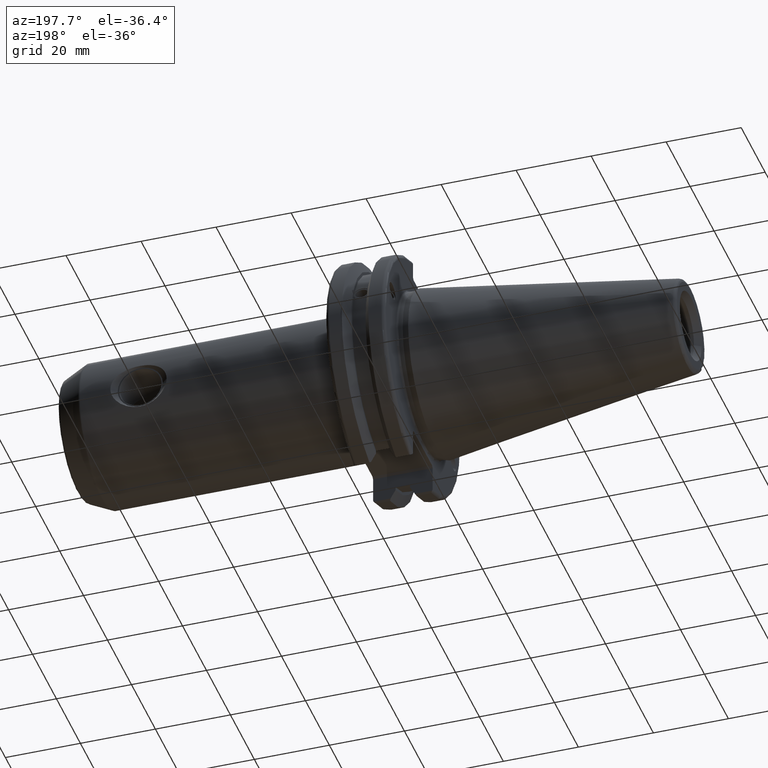
[diagram: clean part render]
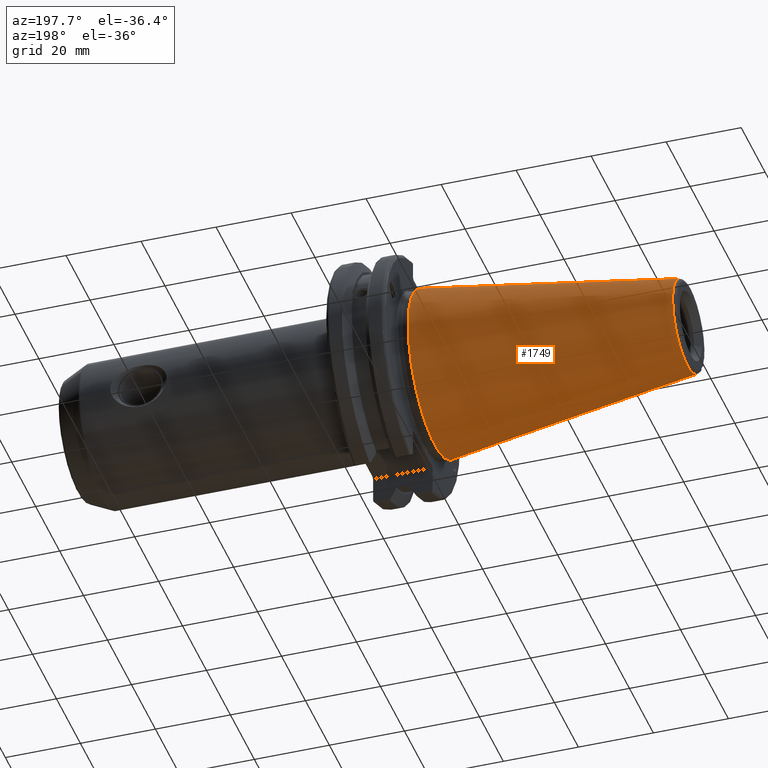
[diagram: same view with one face highlighted and labeled with its STEP entity id]
A machine part, auxiliary view. The second image highlights one B-rep face of the part: STEP entity #1749.
In plain terms, the highlighted conical surface has half-angle 8.297 deg.
Its self-contained STEP definition (entity closure, byte-faithful):
#122=CONICAL_SURFACE('',#1970,17.2484375,0.144812498238939);
#187=FACE_OUTER_BOUND('',#292,.T.);
#292=EDGE_LOOP('',(#1517,#1518,#1519,#1520,#1521,#1522,#1523));
#429=LINE('',#3389,#521);
#521=VECTOR('',#2440,17.2484375);
#628=CIRCLE('',#1961,12.3966635780937);
#629=CIRCLE('',#1962,12.3966635780937);
#633=CIRCLE('',#1966,12.3966635780937);
#636=CIRCLE('',#1971,22.225);
#637=CIRCLE('',#1972,22.225);
#823=VERTEX_POINT('',#3368);
#824=VERTEX_POINT('',#3369);
#825=VERTEX_POINT('',#3371);
#830=VERTEX_POINT('',#3385);
#831=VERTEX_POINT('',#3386);
#1071=EDGE_CURVE('',#823,#824,#628,.T.);
#1072=EDGE_CURVE('',#824,#825,#629,.T.);
#1076=EDGE_CURVE('',#825,#823,#633,.T.);
#1079=EDGE_CURVE('',#830,#831,#636,.T.);
#1080=EDGE_CURVE('',#831,#830,#637,.T.);
#1081=EDGE_CURVE('',#831,#824,#429,.T.);
#1517=ORIENTED_EDGE('',*,*,#1079,.F.);
#1518=ORIENTED_EDGE('',*,*,#1080,.F.);
#1519=ORIENTED_EDGE('',*,*,#1081,.T.);
#1520=ORIENTED_EDGE('',*,*,#1071,.F.);
#1521=ORIENTED_EDGE('',*,*,#1076,.F.);
#1522=ORIENTED_EDGE('',*,*,#1072,.F.);
#1523=ORIENTED_EDGE('',*,*,#1081,.F.);
#1749=ADVANCED_FACE('',(#187),#122,.T.);
#1961=AXIS2_PLACEMENT_3D('',#3370,#2416,#2417);
#1962=AXIS2_PLACEMENT_3D('',#3372,#2418,#2419);
#1966=AXIS2_PLACEMENT_3D('',#3378,#2426,#2427);
#1970=AXIS2_PLACEMENT_3D('',#3384,#2434,#2435);
#1971=AXIS2_PLACEMENT_3D('',#3387,#2436,#2437);
#1972=AXIS2_PLACEMENT_3D('',#3388,#2438,#2439);
#2416=DIRECTION('center_axis',(-1.,0.,0.));
#2417=DIRECTION('ref_axis',(0.,-1.,3.06161699786838E-17));
#2418=DIRECTION('center_axis',(-1.,0.,0.));
#2419=DIRECTION('ref_axis',(0.,-1.,3.06161699786838E-17));
#2426=DIRECTION('center_axis',(-1.,0.,0.));
#2427=DIRECTION('ref_axis',(0.,-1.,3.06161699786838E-17));
#2434=DIRECTION('center_axis',(1.,0.,0.));
#2435=DIRECTION('ref_axis',(0.,1.,0.));
#2436=DIRECTION('center_axis',(1.,0.,0.));
#2437=DIRECTION('ref_axis',(0.,0.,-1.));
#2438=DIRECTION('center_axis',(1.,0.,0.));
#2439=DIRECTION('ref_axis',(0.,0.,-1.));
#2440=DIRECTION('',(-0.989532981063282,0.144306893071729,1.76724974695192E-17));
#3368=CARTESIAN_POINT('',(-67.3943068930717,12.3966635780937,-3.79538359275475E-15));
#3369=CARTESIAN_POINT('',(-67.3943068930718,-12.3966635780937,-1.5181534371019E-15));
#3370=CARTESIAN_POINT('Origin',(-67.3943068930717,0.,-1.89769179637738E-15));
#3371=CARTESIAN_POINT('',(-67.3943068930717,-1.5181534371019E-15,12.3966635780937));
#3372=CARTESIAN_POINT('Origin',(-67.3943068930717,0.,-1.89769179637738E-15));
#3378=CARTESIAN_POINT('Origin',(-67.3943068930717,0.,-1.89769179637738E-15));
#3384=CARTESIAN_POINT('Origin',(-34.125,0.,0.));
#3385=CARTESIAN_POINT('',(0.,22.225,0.));
#3386=CARTESIAN_POINT('',(0.,-22.225,-2.72177751110499E-15));
#3387=CARTESIAN_POINT('Origin',(0.,0.,0.));
#3388=CARTESIAN_POINT('Origin',(0.,0.,0.));
#3389=CARTESIAN_POINT('',(-34.125,-17.2484375,-2.11232437746682E-15));